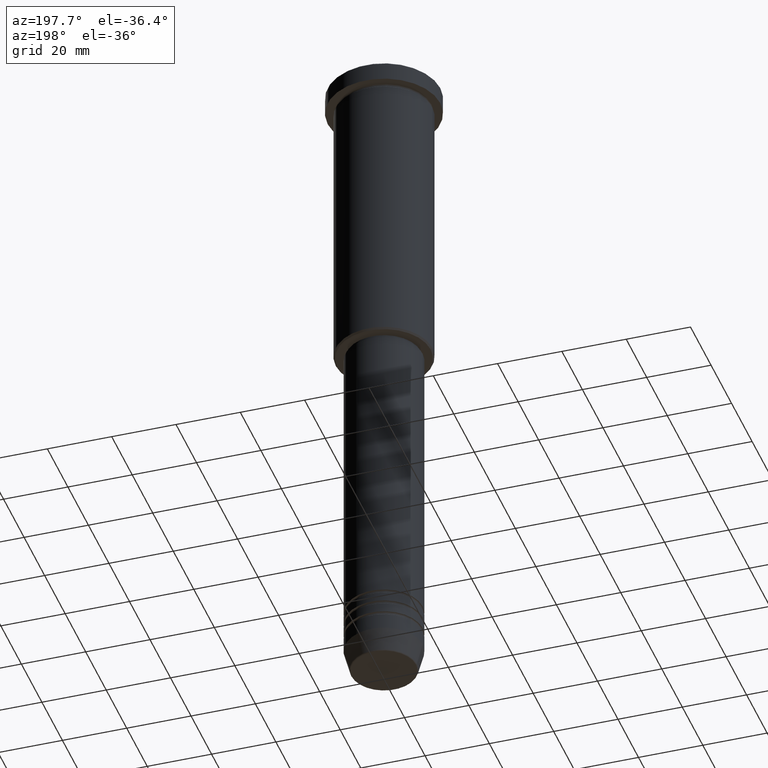
[diagram: clean part render]
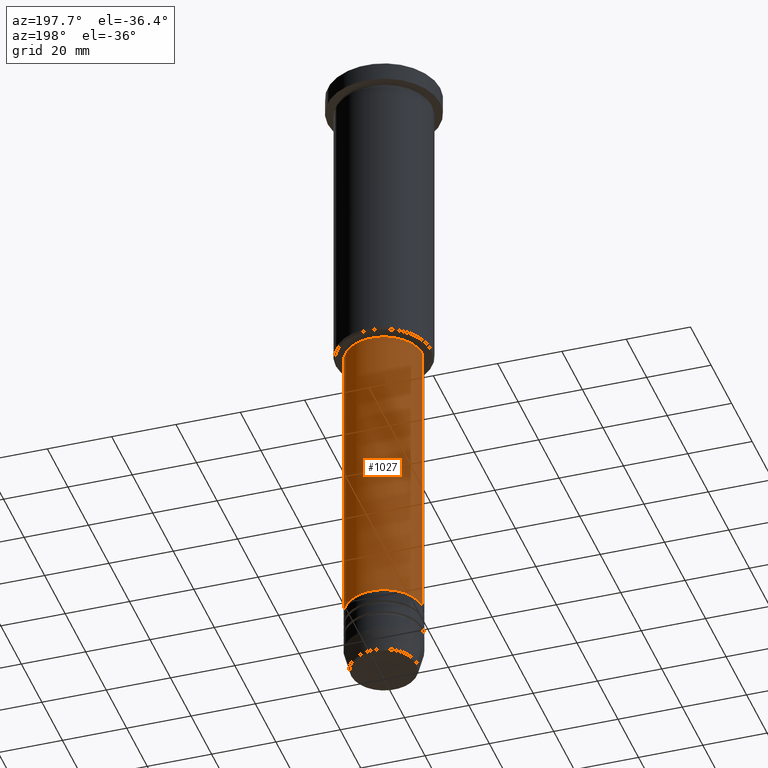
[diagram: same view with one face highlighted and labeled with its STEP entity id]
A machine part, auxiliary view. The second image highlights one B-rep face of the part: STEP entity #1027.
In plain terms, the highlighted cylindrical surface (partial cylindrical patch) has radius 12 mm, axis along (-0, -0, 1).
Its self-contained STEP definition (entity closure, byte-faithful):
#26 = CARTESIAN_POINT ( 'NONE',  ( 0.000000000000000000, 0.000000000000000000, -189.9999999999999147 ) ) ;
#28 = CARTESIAN_POINT ( 'NONE',  ( 12.00000000000000000, 0.000000000000000000, 0.000000000000000000 ) ) ;
#73 = LINE ( 'NONE', #28, #1125 ) ;
#78 = DIRECTION ( 'NONE',  ( -0.000000000000000000, -0.000000000000000000, 1.000000000000000000 ) ) ;
#139 = DIRECTION ( 'NONE',  ( -0.000000000000000000, -0.000000000000000000, 1.000000000000000000 ) ) ;
#153 = CARTESIAN_POINT ( 'NONE',  ( 0.000000000000000000, 0.000000000000000000, 0.000000000000000000 ) ) ;
#157 = CYLINDRICAL_SURFACE ( 'NONE', #776, 12.00000000000000000 ) ;
#168 = VERTEX_POINT ( 'NONE', #365 ) ;
#259 = VECTOR ( 'NONE', #78, 1000.000000000000000 ) ;
#280 = DIRECTION ( 'NONE',  ( -0.000000000000000000, -0.000000000000000000, 1.000000000000000000 ) ) ;
#310 = CIRCLE ( 'NONE', #881, 12.00000000000000000 ) ;
#365 = CARTESIAN_POINT ( 'NONE',  ( -12.00000000000000000, 1.469576158976823947E-15, -189.9999999999999147 ) ) ;
#368 = DIRECTION ( 'NONE',  ( 1.000000000000000000, 0.000000000000000000, 0.000000000000000000 ) ) ;
#414 = DIRECTION ( 'NONE',  ( 1.000000000000000000, 0.000000000000000000, 0.000000000000000000 ) ) ;
#430 = CARTESIAN_POINT ( 'NONE',  ( -12.00000000000000000, 1.469576158976823947E-15, 0.000000000000000000 ) ) ;
#504 = FACE_OUTER_BOUND ( 'NONE', #1076, .T. ) ;
#567 = ORIENTED_EDGE ( 'NONE', *, *, #834, .F. ) ;
#572 = VERTEX_POINT ( 'NONE', #764 ) ;
#596 = DIRECTION ( 'NONE',  ( 1.000000000000000000, 0.000000000000000000, 0.000000000000000000 ) ) ;
#622 = ORIENTED_EDGE ( 'NONE', *, *, #684, .T. ) ;
#654 = DIRECTION ( 'NONE',  ( -0.000000000000000000, -0.000000000000000000, 1.000000000000000000 ) ) ;
#669 = DIRECTION ( 'NONE',  ( -0.000000000000000000, -0.000000000000000000, 1.000000000000000000 ) ) ;
#684 = EDGE_CURVE ( 'NONE', #572, #168, #310, .T. ) ;
#734 = AXIS2_PLACEMENT_3D ( 'NONE', #1041, #139, #414 ) ;
#757 = VERTEX_POINT ( 'NONE', #816 ) ;
#764 = CARTESIAN_POINT ( 'NONE',  ( 12.00000000000000000, 0.000000000000000000, -189.9999999999999147 ) ) ;
#776 = AXIS2_PLACEMENT_3D ( 'NONE', #153, #669, #596 ) ;
#815 = ORIENTED_EDGE ( 'NONE', *, *, #964, .F. ) ;
#816 = CARTESIAN_POINT ( 'NONE',  ( -12.00000000000000000, 1.469576158976823947E-15, -97.00000000000005684 ) ) ;
#819 = CIRCLE ( 'NONE', #734, 12.00000000000000000 ) ;
#834 = EDGE_CURVE ( 'NONE', #572, #956, #73, .T. ) ;
#881 = AXIS2_PLACEMENT_3D ( 'NONE', #26, #280, #368 ) ;
#885 = LINE ( 'NONE', #430, #259 ) ;
#913 = ORIENTED_EDGE ( 'NONE', *, *, #1112, .T. ) ;
#956 = VERTEX_POINT ( 'NONE', #1119 ) ;
#964 = EDGE_CURVE ( 'NONE', #956, #757, #819, .T. ) ;
#1027 = ADVANCED_FACE ( 'NONE', ( #504 ), #157, .T. ) ;
#1041 = CARTESIAN_POINT ( 'NONE',  ( 0.000000000000000000, 0.000000000000000000, -97.00000000000005684 ) ) ;
#1076 = EDGE_LOOP ( 'NONE', ( #622, #913, #815, #567 ) ) ;
#1112 = EDGE_CURVE ( 'NONE', #168, #757, #885, .T. ) ;
#1119 = CARTESIAN_POINT ( 'NONE',  ( 12.00000000000000000, 0.000000000000000000, -97.00000000000005684 ) ) ;
#1125 = VECTOR ( 'NONE', #654, 1000.000000000000000 ) ;